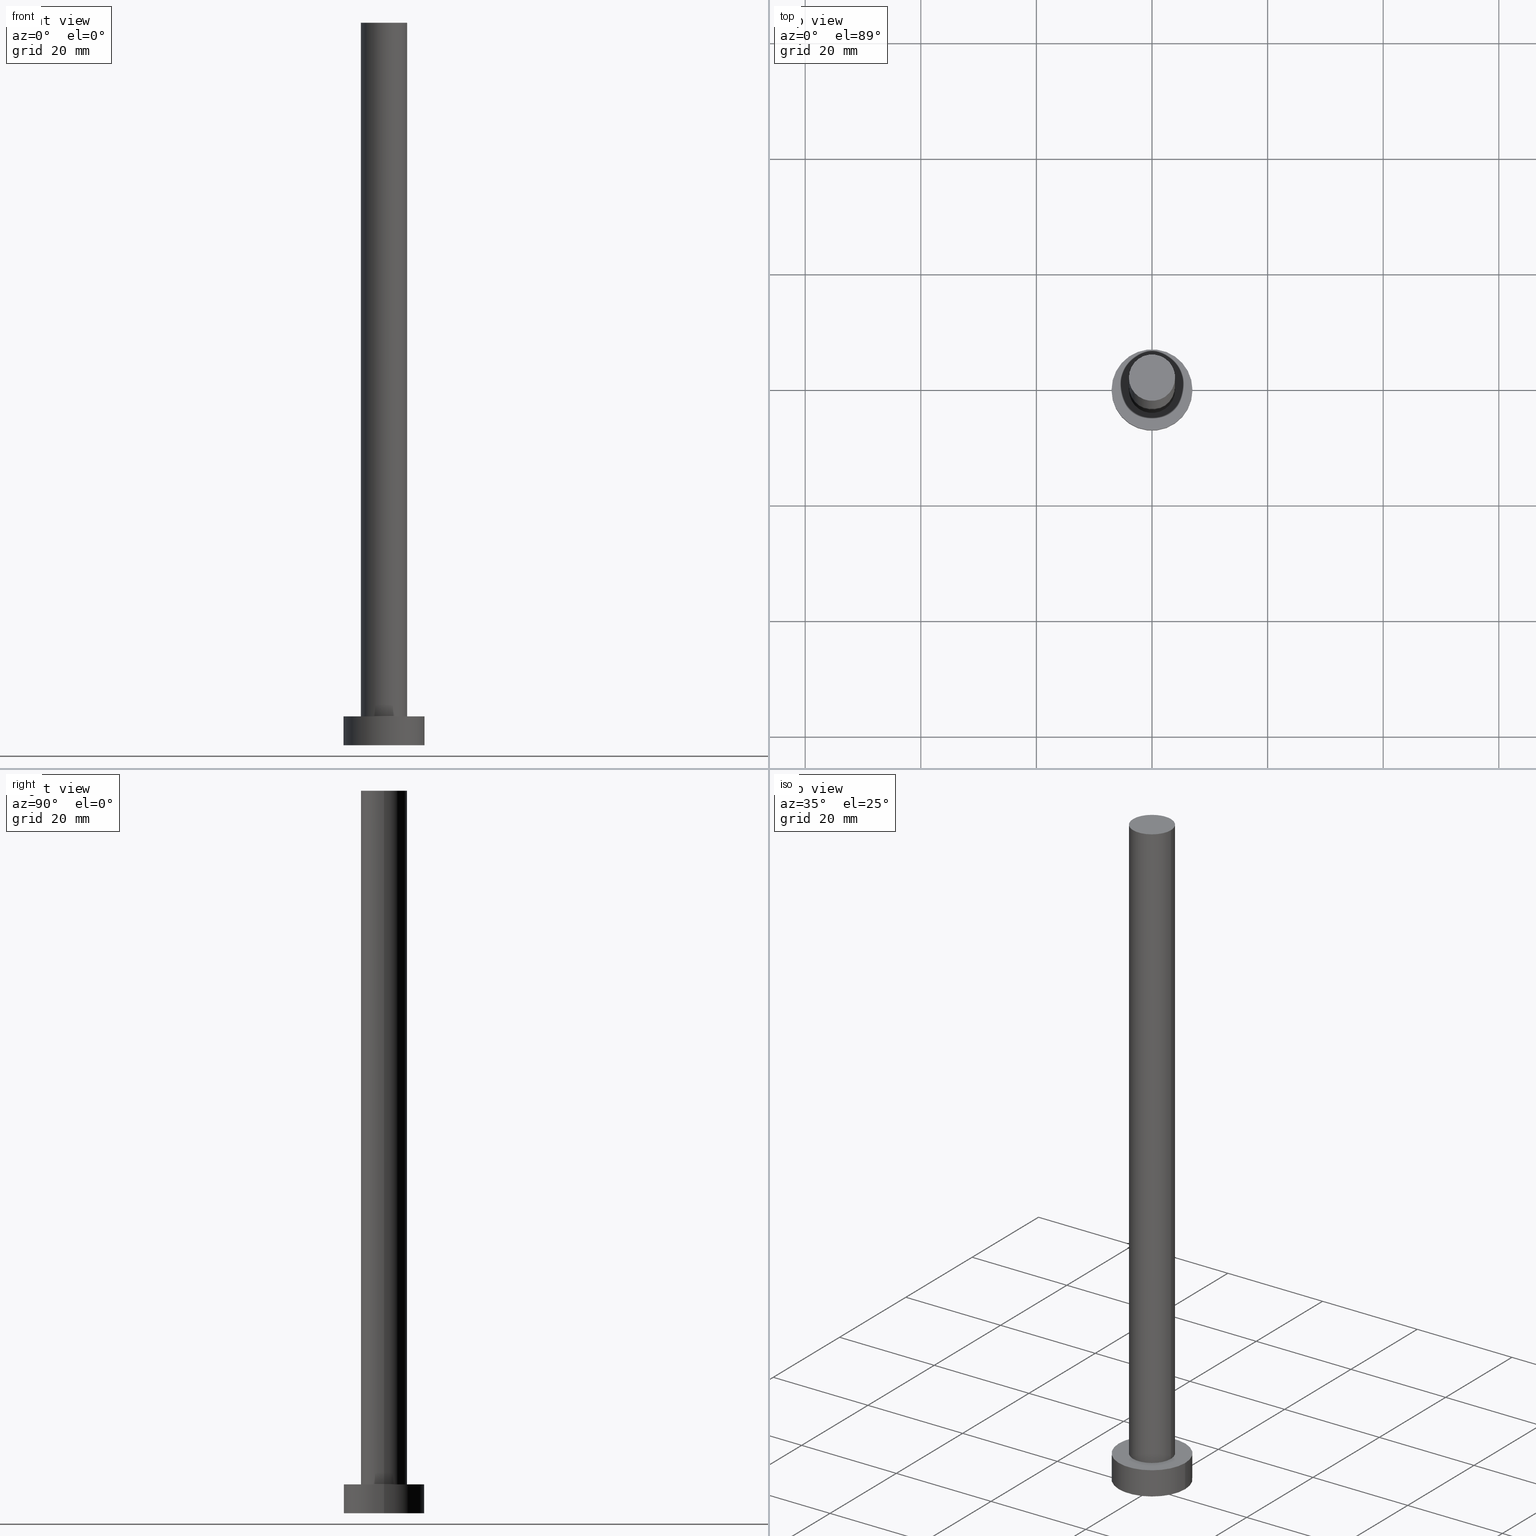
[diagram: canonical four-view strip — front | top / right | iso, engineering-drawing reading convention]
A machine part, canonical four-view strip (front | top / right | iso — engineering-drawing reading convention). The complete STEP part file that produces these views, byte-faithful:
ISO-10303-21;
HEADER;
FILE_DESCRIPTION (( 'STEP AP203' ),
    '1' );
FILE_NAME ('9c1c.STEP',
    '2023-02-13T11:45:25',
    ( '' ),
    ( '' ),
    'SwSTEP 2.0',
    'SolidWorks 2019',
    '' );
FILE_SCHEMA (( 'CONFIG_CONTROL_DESIGN' ));
ENDSEC;

DATA;
#1 = EDGE_LOOP ( 'NONE', ( #56, #167 ) ) ;
#2 = PERSON_AND_ORGANIZATION ( #51, #16 ) ;
#3 = ORIENTED_EDGE ( 'NONE', *, *, #223, .T. ) ;
#4 = AXIS2_PLACEMENT_3D ( 'NONE', #240, #46, #120 ) ;
#5 = ORIENTED_EDGE ( 'NONE', *, *, #223, .F. ) ;
#6 = CARTESIAN_POINT ( 'NONE',  ( 0.000000000000000000, 0.000000000000000000, 5.000000000000000000 ) ) ;
#7 = CARTESIAN_POINT ( 'NONE',  ( 0.000000000000000000, 0.000000000000000000, 0.000000000000000000 ) ) ;
#8 = DIRECTION ( 'NONE',  ( 1.000000000000000000, 0.000000000000000000, -0.000000000000000000 ) ) ;
#9 = DIRECTION ( 'NONE',  ( 1.000000000000000000, 0.000000000000000000, 0.000000000000000000 ) ) ;
#10 = CARTESIAN_POINT ( 'NONE',  ( 0.000000000000000000, 0.000000000000000000, 0.000000000000000000 ) ) ;
#11 = AXIS2_PLACEMENT_3D ( 'NONE', #10, #70, #130 ) ;
#12 = MECHANICAL_CONTEXT ( 'NONE', #84, 'mechanical' ) ;
#13 = CARTESIAN_POINT ( 'NONE',  ( -7.000000000000000000, 0.000000000000000000, 0.000000000000000000 ) ) ;
#14 = CIRCLE ( 'NONE', #196, 7.000000000000000000 ) ;
#15 = COORDINATED_UNIVERSAL_TIME_OFFSET ( 1, 0, .AHEAD. ) ;
#16 = ORGANIZATION ( 'NEUR�EN�', 'NEUR�EN�', '' ) ;
#17 = CALENDAR_DATE ( 2023, 13, 2 ) ;
#18 = ADVANCED_FACE ( 'NONE', ( #201, #181 ), #145, .T. ) ;
#19 = CLOSED_SHELL ( 'NONE', ( #81, #227, #216, #18, #87, #116, #128 ) ) ;
#20 = PERSON_AND_ORGANIZATION ( #51, #16 ) ;
#21 = ORIENTED_EDGE ( 'NONE', *, *, #160, .F. ) ;
#22 = EDGE_CURVE ( 'NONE', #255, #43, #229, .T. ) ;
#23 = ORIENTED_EDGE ( 'NONE', *, *, #198, .T. ) ;
#24 = CIRCLE ( 'NONE', #47, 7.000000000000000000 ) ;
#25 = FACE_OUTER_BOUND ( 'NONE', #1, .T. ) ;
#26 = ORIENTED_EDGE ( 'NONE', *, *, #27, .F. ) ;
#27 = EDGE_CURVE ( 'NONE', #104, #255, #224, .T. ) ;
#28 = DIRECTION ( 'NONE',  ( 0.000000000000000000, 0.000000000000000000, 1.000000000000000000 ) ) ;
#29 = VERTEX_POINT ( 'NONE', #199 ) ;
#30 = AXIS2_PLACEMENT_3D ( 'NONE', #169, #33, #225 ) ;
#31 = DIRECTION ( 'NONE',  ( 0.000000000000000000, 0.000000000000000000, 1.000000000000000000 ) ) ;
#32 = CARTESIAN_POINT ( 'NONE',  ( 0.000000000000000000, 0.000000000000000000, 5.000000000000000000 ) ) ;
#33 = DIRECTION ( 'NONE',  ( 0.000000000000000000, 0.000000000000000000, 1.000000000000000000 ) ) ;
#34 = APPLICATION_PROTOCOL_DEFINITION ( 'international standard', 'config_control_design', 1994, #84 ) ;
#35 = DIRECTION ( 'NONE',  ( 0.000000000000000000, 0.000000000000000000, 1.000000000000000000 ) ) ;
#36 =( NAMED_UNIT ( * ) PLANE_ANGLE_UNIT ( ) SI_UNIT ( $, .RADIAN. ) );
#37 = EDGE_LOOP ( 'NONE', ( #83, #164, #137, #21 ) ) ;
#38 = EDGE_CURVE ( 'NONE', #104, #217, #146, .T. ) ;
#39 = CALENDAR_DATE ( 2023, 13, 2 ) ;
#40 = APPROVAL_STATUS ( 'not_yet_approved' ) ;
#41 = ORIENTED_EDGE ( 'NONE', *, *, #209, .F. ) ;
#42 = AXIS2_PLACEMENT_3D ( 'NONE', #215, #242, #108 ) ;
#43 = VERTEX_POINT ( 'NONE', #243 ) ;
#44 = SECURITY_CLASSIFICATION ( '', '', #193 ) ;
#45 = ORIENTED_EDGE ( 'NONE', *, *, #22, .F. ) ;
#46 = DIRECTION ( 'NONE',  ( 0.000000000000000000, 0.000000000000000000, 1.000000000000000000 ) ) ;
#47 = AXIS2_PLACEMENT_3D ( 'NONE', #239, #28, #142 ) ;
#48 = CARTESIAN_POINT ( 'NONE',  ( 0.000000000000000000, 0.000000000000000000, 125.0000000000000000 ) ) ;
#49 =( NAMED_UNIT ( * ) SI_UNIT ( $, .STERADIAN. ) SOLID_ANGLE_UNIT ( ) );
#50 = DIRECTION ( 'NONE',  ( -1.000000000000000000, 0.000000000000000000, 0.000000000000000000 ) ) ;
#51 = PERSON ( 'NEUR�EN�', 'NEUR�EN�', 'NEUR�EN�', ('NEUR�EN�'), ('NEUR�EN�'), ('NEUR�EN�') ) ;
#52 = DIRECTION ( 'NONE',  ( -0.000000000000000000, -0.000000000000000000, -1.000000000000000000 ) ) ;
#53 = APPROVAL_STATUS ( 'not_yet_approved' ) ;
#54 = PERSON_AND_ORGANIZATION_ROLE ( 'creator' ) ;
#55 = EDGE_LOOP ( 'NONE', ( #85, #114 ) ) ;
#56 = ORIENTED_EDGE ( 'NONE', *, *, #148, .T. ) ;
#57 = ORIENTED_EDGE ( 'NONE', *, *, #38, .F. ) ;
#58 = PERSON_AND_ORGANIZATION ( #51, #16 ) ;
#59 = AXIS2_PLACEMENT_3D ( 'NONE', #247, #68, #131 ) ;
#60 = FACE_OUTER_BOUND ( 'NONE', #55, .T. ) ;
#61 = ORIENTED_EDGE ( 'NONE', *, *, #175, .T. ) ;
#62 = EDGE_CURVE ( 'NONE', #29, #194, #14, .T. ) ;
#63 = DIRECTION ( 'NONE',  ( -1.000000000000000000, 0.000000000000000000, 0.000000000000000000 ) ) ;
#64 = DIRECTION ( 'NONE',  ( 0.000000000000000000, 0.000000000000000000, 1.000000000000000000 ) ) ;
#65 = EDGE_CURVE ( 'NONE', #157, #177, #24, .T. ) ;
#66 = ORIENTED_EDGE ( 'NONE', *, *, #148, .F. ) ;
#67 = CARTESIAN_POINT ( 'NONE',  ( 7.000000000000000000, 8.572527594031473190E-16, 5.000000000000000000 ) ) ;
#68 = DIRECTION ( 'NONE',  ( 0.000000000000000000, 0.000000000000000000, 1.000000000000000000 ) ) ;
#69 = CC_DESIGN_APPROVAL ( #188, ( #158 ) ) ;
#70 = DIRECTION ( 'NONE',  ( 0.000000000000000000, 0.000000000000000000, 1.000000000000000000 ) ) ;
#71 = PERSON_AND_ORGANIZATION ( #51, #16 ) ;
#72 = CYLINDRICAL_SURFACE ( 'NONE', #190, 7.000000000000000000 ) ;
#73 = DATE_TIME_ROLE ( 'classification_date' ) ;
#74 = CC_DESIGN_PERSON_AND_ORGANIZATION_ASSIGNMENT ( #187, #96, ( #252 ) ) ;
#75 = DATE_AND_TIME ( #17, #179 ) ;
#76 = AXIS2_PLACEMENT_3D ( 'NONE', #127, #35, #150 ) ;
#77 = DATE_TIME_ROLE ( 'creation_date' ) ;
#78 = AXIS2_PLACEMENT_3D ( 'NONE', #171, #168, #151 ) ;
#79 = APPROVAL_PERSON_ORGANIZATION ( #2, #232, #132 ) ;
#80 = PERSON_AND_ORGANIZATION_ROLE ( 'classification_officer' ) ;
#81 = ADVANCED_FACE ( 'NONE', ( #141 ), #119, .T. ) ;
#82 = DATE_AND_TIME ( #39, #192 ) ;
#83 = ORIENTED_EDGE ( 'NONE', *, *, #65, .F. ) ;
#84 = APPLICATION_CONTEXT ( 'configuration controlled 3d designs of mechanical parts and assemblies' ) ;
#85 = ORIENTED_EDGE ( 'NONE', *, *, #236, .F. ) ;
#86 = PRODUCT_DEFINITION_FORMATION_WITH_SPECIFIED_SOURCE ( 'LIBOVOLN�', '', #252, .NOT_KNOWN. ) ;
#87 = ADVANCED_FACE ( 'NONE', ( #60 ), #140, .F. ) ;
#88 = DIRECTION ( 'NONE',  ( 0.000000000000000000, 0.000000000000000000, 1.000000000000000000 ) ) ;
#89 = CARTESIAN_POINT ( 'NONE',  ( 0.000000000000000000, 0.000000000000000000, 125.0000000000000000 ) ) ;
#90 = CARTESIAN_POINT ( 'NONE',  ( 4.000000000000000000, 4.898587196589412829E-16, 125.0000000000000000 ) ) ;
#91 = LOCAL_TIME ( 12, 45, 25.00000000000000000, #100 ) ;
#92 = EDGE_LOOP ( 'NONE', ( #26, #66, #3, #61 ) ) ;
#93 = AXIS2_PLACEMENT_3D ( 'NONE', #89, #105, #63 ) ;
#94 = LINE ( 'NONE', #226, #249 ) ;
#95 = APPROVAL ( #53, 'NEUR�EN�' ) ;
#96 = PERSON_AND_ORGANIZATION_ROLE ( 'design_owner' ) ;
#97 = DIRECTION ( 'NONE',  ( -0.000000000000000000, -0.000000000000000000, -1.000000000000000000 ) ) ;
#98 = AXIS2_PLACEMENT_3D ( 'NONE', #48, #88, #9 ) ;
#99 = CALENDAR_DATE ( 2023, 13, 2 ) ;
#100 = COORDINATED_UNIVERSAL_TIME_OFFSET ( 1, 0, .AHEAD. ) ;
#101 = ORIENTED_EDGE ( 'NONE', *, *, #160, .T. ) ;
#102 = EDGE_LOOP ( 'NONE', ( #219, #45 ) ) ;
#103 = DIRECTION ( 'NONE',  ( 1.000000000000000000, 0.000000000000000000, 0.000000000000000000 ) ) ;
#104 = VERTEX_POINT ( 'NONE', #90 ) ;
#105 = DIRECTION ( 'NONE',  ( -0.000000000000000000, -0.000000000000000000, -1.000000000000000000 ) ) ;
#106 = CARTESIAN_POINT ( 'NONE',  ( 0.000000000000000000, 0.000000000000000000, 0.000000000000000000 ) ) ;
#107 = CIRCLE ( 'NONE', #78, 4.000000000000000000 ) ;
#108 = DIRECTION ( 'NONE',  ( -1.000000000000000000, 0.000000000000000000, 0.000000000000000000 ) ) ;
#109 = CC_DESIGN_PERSON_AND_ORGANIZATION_ASSIGNMENT ( #58, #117, ( #86 ) ) ;
#110 = CIRCLE ( 'NONE', #59, 7.000000000000000000 ) ;
#111 = DIRECTION ( 'NONE',  ( -0.000000000000000000, -0.000000000000000000, -1.000000000000000000 ) ) ;
#112 = DATE_AND_TIME ( #155, #220 ) ;
#113 = VECTOR ( 'NONE', #52, 1000.000000000000000 ) ;
#114 = ORIENTED_EDGE ( 'NONE', *, *, #62, .F. ) ;
#115 = COORDINATED_UNIVERSAL_TIME_OFFSET ( 1, 0, .AHEAD. ) ;
#116 = ADVANCED_FACE ( 'NONE', ( #197 ), #166, .T. ) ;
#117 = PERSON_AND_ORGANIZATION_ROLE ( 'creator' ) ;
#118 = APPLICATION_CONTEXT ( 'configuration controlled 3d designs of mechanical parts and assemblies' ) ;
#119 = CYLINDRICAL_SURFACE ( 'NONE', #93, 4.000000000000000000 ) ;
#120 = DIRECTION ( 'NONE',  ( 1.000000000000000000, 0.000000000000000000, -0.000000000000000000 ) ) ;
#121 = AXIS2_PLACEMENT_3D ( 'NONE', #205, #207, #250 ) ;
#122 = ORIENTED_EDGE ( 'NONE', *, *, #27, .T. ) ;
#123 = DIRECTION ( 'NONE',  ( -0.000000000000000000, -0.000000000000000000, -1.000000000000000000 ) ) ;
#124 = VECTOR ( 'NONE', #123, 1000.000000000000000 ) ;
#125 = DESIGN_CONTEXT ( 'detailed design', #118, 'design' ) ;
#126 = ORIENTED_EDGE ( 'NONE', *, *, #65, .T. ) ;
#127 = CARTESIAN_POINT ( 'NONE',  ( 0.000000000000000000, 0.000000000000000000, 125.0000000000000000 ) ) ;
#128 = ADVANCED_FACE ( 'NONE', ( #25 ), #183, .T. ) ;
#129 = LINE ( 'NONE', #230, #113 ) ;
#130 = DIRECTION ( 'NONE',  ( 1.000000000000000000, 0.000000000000000000, 0.000000000000000000 ) ) ;
#131 = DIRECTION ( 'NONE',  ( 1.000000000000000000, 0.000000000000000000, 0.000000000000000000 ) ) ;
#132 = APPROVAL_ROLE ( '' ) ;
#133 = DATE_AND_TIME ( #99, #91 ) ;
#134 = CC_DESIGN_PERSON_AND_ORGANIZATION_ASSIGNMENT ( #20, #80, ( #44 ) ) ;
#135 = APPROVAL_ROLE ( '' ) ;
#136 = APPROVAL_STATUS ( 'not_yet_approved' ) ;
#137 = ORIENTED_EDGE ( 'NONE', *, *, #62, .T. ) ;
#138 = APPROVAL_DATE_TIME ( #112, #95 ) ;
#139 = PRODUCT_RELATED_PRODUCT_CATEGORY ( 'detail', '', ( #252 ) ) ;
#140 = PLANE ( 'NONE',  #234 ) ;
#141 = FACE_OUTER_BOUND ( 'NONE', #221, .T. ) ;
#142 = DIRECTION ( 'NONE',  ( 1.000000000000000000, 0.000000000000000000, 0.000000000000000000 ) ) ;
#143 = CC_DESIGN_DATE_AND_TIME_ASSIGNMENT ( #133, #77, ( #158 ) ) ;
#144 = DIRECTION ( 'NONE',  ( 1.000000000000000000, 0.000000000000000000, -0.000000000000000000 ) ) ;
#145 = PLANE ( 'NONE',  #4 ) ;
#146 = CIRCLE ( 'NONE', #98, 4.000000000000000000 ) ;
#147 = CARTESIAN_POINT ( 'NONE',  ( 4.000000000000000000, 4.898587196589412829E-16, 5.000000000000000000 ) ) ;
#148 = EDGE_CURVE ( 'NONE', #217, #104, #185, .T. ) ;
#149 =( GEOMETRIC_REPRESENTATION_CONTEXT ( 3 ) GLOBAL_UNCERTAINTY_ASSIGNED_CONTEXT ( ( #222 ) ) GLOBAL_UNIT_ASSIGNED_CONTEXT ( ( #208, #36, #49 ) ) REPRESENTATION_CONTEXT ( 'NONE', 'WORKASPACE' ) );
#150 = DIRECTION ( 'NONE',  ( 1.000000000000000000, 0.000000000000000000, 0.000000000000000000 ) ) ;
#151 = DIRECTION ( 'NONE',  ( 1.000000000000000000, 0.000000000000000000, 0.000000000000000000 ) ) ;
#152 = FACE_OUTER_BOUND ( 'NONE', #241, .T. ) ;
#153 = MANIFOLD_SOLID_BREP ( 'P�idat vysunut�m3', #19 ) ;
#154 = CARTESIAN_POINT ( 'NONE',  ( 7.000000000000000000, 8.572527594031473190E-16, 5.000000000000000000 ) ) ;
#155 = CALENDAR_DATE ( 2023, 13, 2 ) ;
#156 = AXIS2_PLACEMENT_3D ( 'NONE', #178, #64, #144 ) ;
#157 = VERTEX_POINT ( 'NONE', #67 ) ;
#158 = PRODUCT_DEFINITION ( 'NEZN�M�', '', #86, #125 ) ;
#159 = COORDINATED_UNIVERSAL_TIME_OFFSET ( 1, 0, .AHEAD. ) ;
#160 = EDGE_CURVE ( 'NONE', #177, #194, #94, .T. ) ;
#161 = PERSON_AND_ORGANIZATION_ROLE ( 'design_supplier' ) ;
#162 = DIRECTION ( 'NONE',  ( 1.000000000000000000, 0.000000000000000000, 0.000000000000000000 ) ) ;
#163 = APPROVAL_PERSON_ORGANIZATION ( #71, #188, #135 ) ;
#164 = ORIENTED_EDGE ( 'NONE', *, *, #209, .T. ) ;
#165 = DIRECTION ( 'NONE',  ( 0.000000000000000000, 0.000000000000000000, 1.000000000000000000 ) ) ;
#166 = CYLINDRICAL_SURFACE ( 'NONE', #42, 4.000000000000000000 ) ;
#167 = ORIENTED_EDGE ( 'NONE', *, *, #38, .T. ) ;
#168 = DIRECTION ( 'NONE',  ( 0.000000000000000000, 0.000000000000000000, 1.000000000000000000 ) ) ;
#169 = CARTESIAN_POINT ( 'NONE',  ( 0.000000000000000000, 0.000000000000000000, 5.000000000000000000 ) ) ;
#170 = CYLINDRICAL_SURFACE ( 'NONE', #121, 7.000000000000000000 ) ;
#171 = CARTESIAN_POINT ( 'NONE',  ( 0.000000000000000000, 0.000000000000000000, 5.000000000000000000 ) ) ;
#172 = PRODUCT_DEFINITION_SHAPE ( 'NONE', 'NONE',  #158 ) ;
#173 = APPROVAL_DATE_TIME ( #82, #188 ) ;
#174 = PERSON_AND_ORGANIZATION ( #51, #16 ) ;
#175 = EDGE_CURVE ( 'NONE', #43, #255, #107, .T. ) ;
#176 = ORIENTED_EDGE ( 'NONE', *, *, #198, .F. ) ;
#177 = VERTEX_POINT ( 'NONE', #231 ) ;
#178 = CARTESIAN_POINT ( 'NONE',  ( 0.000000000000000000, 0.000000000000000000, 125.0000000000000000 ) ) ;
#179 = LOCAL_TIME ( 12, 45, 25.00000000000000000, #15 ) ;
#180 = CC_DESIGN_PERSON_AND_ORGANIZATION_ASSIGNMENT ( #174, #161, ( #86 ) ) ;
#181 = FACE_OUTER_BOUND ( 'NONE', #204, .T. ) ;
#182 = DIRECTION ( 'NONE',  ( 0.000000000000000000, 0.000000000000000000, 1.000000000000000000 ) ) ;
#183 = PLANE ( 'NONE',  #156 ) ;
#184 = CC_DESIGN_PERSON_AND_ORGANIZATION_ASSIGNMENT ( #213, #54, ( #158 ) ) ;
#185 = CIRCLE ( 'NONE', #76, 4.000000000000000000 ) ;
#186 = APPROVAL_PERSON_ORGANIZATION ( #233, #95, #235 ) ;
#187 = PERSON_AND_ORGANIZATION ( #51, #16 ) ;
#188 = APPROVAL ( #136, 'NEUR�EN�' ) ;
#189 = DIRECTION ( 'NONE',  ( -0.000000000000000000, -0.000000000000000000, -1.000000000000000000 ) ) ;
#190 = AXIS2_PLACEMENT_3D ( 'NONE', #32, #111, #50 ) ;
#191 = CC_DESIGN_DATE_AND_TIME_ASSIGNMENT ( #253, #73, ( #44 ) ) ;
#192 = LOCAL_TIME ( 12, 45, 25.00000000000000000, #212 ) ;
#193 = SECURITY_CLASSIFICATION_LEVEL ( 'unclassified' ) ;
#194 = VERTEX_POINT ( 'NONE', #13 ) ;
#195 = ORIENTED_EDGE ( 'NONE', *, *, #22, .T. ) ;
#196 = AXIS2_PLACEMENT_3D ( 'NONE', #7, #31, #162 ) ;
#197 = FACE_OUTER_BOUND ( 'NONE', #92, .T. ) ;
#198 = EDGE_CURVE ( 'NONE', #177, #157, #251, .T. ) ;
#199 = CARTESIAN_POINT ( 'NONE',  ( 7.000000000000000000, 8.572527594031473190E-16, 0.000000000000000000 ) ) ;
#200 = CC_DESIGN_APPROVAL ( #95, ( #44 ) ) ;
#201 = FACE_BOUND ( 'NONE', #102, .T. ) ;
#202 = CARTESIAN_POINT ( 'NONE',  ( 4.000000000000000000, 4.898587196589412829E-16, 125.0000000000000000 ) ) ;
#203 = AXIS2_PLACEMENT_3D ( 'NONE', #6, #165, #103 ) ;
#204 = EDGE_LOOP ( 'NONE', ( #23, #126 ) ) ;
#205 = CARTESIAN_POINT ( 'NONE',  ( 0.000000000000000000, 0.000000000000000000, 5.000000000000000000 ) ) ;
#206 = ADVANCED_BREP_SHAPE_REPRESENTATION ( '9c1c', ( #153, #11 ), #149 ) ;
#207 = DIRECTION ( 'NONE',  ( -0.000000000000000000, -0.000000000000000000, -1.000000000000000000 ) ) ;
#208 =( LENGTH_UNIT ( ) NAMED_UNIT ( * ) SI_UNIT ( .MILLI., .METRE. ) );
#209 = EDGE_CURVE ( 'NONE', #157, #29, #245, .T. ) ;
#210 = CC_DESIGN_APPROVAL ( #232, ( #86 ) ) ;
#211 = SHAPE_DEFINITION_REPRESENTATION ( #172, #206 ) ;
#212 = COORDINATED_UNIVERSAL_TIME_OFFSET ( 1, 0, .AHEAD. ) ;
#213 = PERSON_AND_ORGANIZATION ( #51, #16 ) ;
#214 = CC_DESIGN_SECURITY_CLASSIFICATION ( #44, ( #86 ) ) ;
#215 = CARTESIAN_POINT ( 'NONE',  ( 0.000000000000000000, 0.000000000000000000, 125.0000000000000000 ) ) ;
#216 = ADVANCED_FACE ( 'NONE', ( #152 ), #170, .T. ) ;
#217 = VERTEX_POINT ( 'NONE', #228 ) ;
#218 = VECTOR ( 'NONE', #97, 1000.000000000000000 ) ;
#219 = ORIENTED_EDGE ( 'NONE', *, *, #175, .F. ) ;
#220 = LOCAL_TIME ( 12, 45, 25.00000000000000000, #115 ) ;
#221 = EDGE_LOOP ( 'NONE', ( #57, #122, #195, #5 ) ) ;
#222 = UNCERTAINTY_MEASURE_WITH_UNIT (LENGTH_MEASURE( 1.000000000000000082E-05 ), #208, 'distance_accuracy_value', 'NONE');
#223 = EDGE_CURVE ( 'NONE', #217, #43, #129, .T. ) ;
#224 = LINE ( 'NONE', #202, #124 ) ;
#225 = DIRECTION ( 'NONE',  ( 1.000000000000000000, 0.000000000000000000, 0.000000000000000000 ) ) ;
#226 = CARTESIAN_POINT ( 'NONE',  ( -7.000000000000000000, 0.000000000000000000, 5.000000000000000000 ) ) ;
#227 = ADVANCED_FACE ( 'NONE', ( #244 ), #72, .T. ) ;
#228 = CARTESIAN_POINT ( 'NONE',  ( -4.000000000000000000, 0.000000000000000000, 125.0000000000000000 ) ) ;
#229 = CIRCLE ( 'NONE', #203, 4.000000000000000000 ) ;
#230 = CARTESIAN_POINT ( 'NONE',  ( -4.000000000000000000, 0.000000000000000000, 125.0000000000000000 ) ) ;
#231 = CARTESIAN_POINT ( 'NONE',  ( -7.000000000000000000, 0.000000000000000000, 5.000000000000000000 ) ) ;
#232 = APPROVAL ( #40, 'NEUR�EN�' ) ;
#233 = PERSON_AND_ORGANIZATION ( #51, #16 ) ;
#234 = AXIS2_PLACEMENT_3D ( 'NONE', #106, #182, #8 ) ;
#235 = APPROVAL_ROLE ( '' ) ;
#236 = EDGE_CURVE ( 'NONE', #194, #29, #110, .T. ) ;
#237 = ORIENTED_EDGE ( 'NONE', *, *, #236, .T. ) ;
#238 = CALENDAR_DATE ( 2023, 13, 2 ) ;
#239 = CARTESIAN_POINT ( 'NONE',  ( 0.000000000000000000, 0.000000000000000000, 5.000000000000000000 ) ) ;
#240 = CARTESIAN_POINT ( 'NONE',  ( 0.000000000000000000, 0.000000000000000000, 5.000000000000000000 ) ) ;
#241 = EDGE_LOOP ( 'NONE', ( #41, #176, #101, #237 ) ) ;
#242 = DIRECTION ( 'NONE',  ( -0.000000000000000000, -0.000000000000000000, -1.000000000000000000 ) ) ;
#243 = CARTESIAN_POINT ( 'NONE',  ( -4.000000000000000000, 0.000000000000000000, 5.000000000000000000 ) ) ;
#244 = FACE_OUTER_BOUND ( 'NONE', #37, .T. ) ;
#245 = LINE ( 'NONE', #154, #218 ) ;
#246 = LOCAL_TIME ( 12, 45, 25.00000000000000000, #159 ) ;
#247 = CARTESIAN_POINT ( 'NONE',  ( 0.000000000000000000, 0.000000000000000000, 0.000000000000000000 ) ) ;
#248 = APPLICATION_PROTOCOL_DEFINITION ( 'international standard', 'config_control_design', 1994, #118 ) ;
#249 = VECTOR ( 'NONE', #189, 1000.000000000000000 ) ;
#250 = DIRECTION ( 'NONE',  ( -1.000000000000000000, 0.000000000000000000, 0.000000000000000000 ) ) ;
#251 = CIRCLE ( 'NONE', #30, 7.000000000000000000 ) ;
#252 = PRODUCT ( '9c1c', '9c1c', '', ( #12 ) ) ;
#253 = DATE_AND_TIME ( #238, #246 ) ;
#254 = APPROVAL_DATE_TIME ( #75, #232 ) ;
#255 = VERTEX_POINT ( 'NONE', #147 ) ;
ENDSEC;
END-ISO-10303-21;
